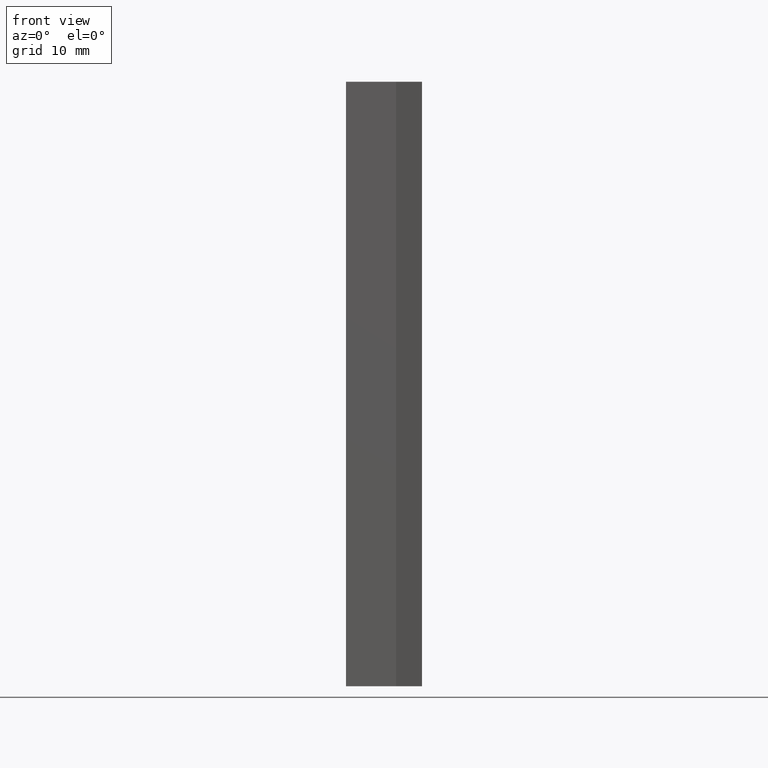
[diagram: clean part render]
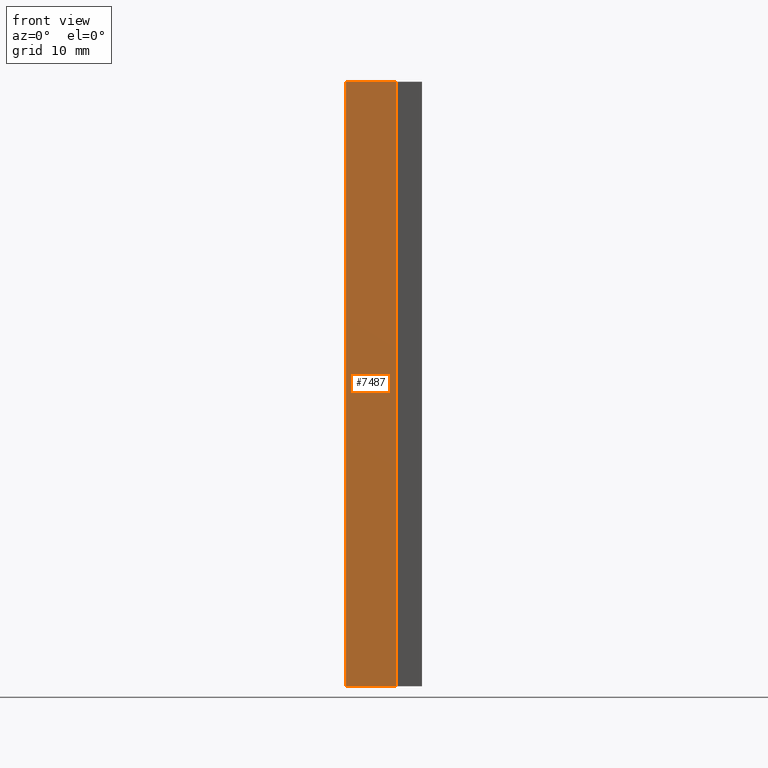
[diagram: same view with one face highlighted and labeled with its STEP entity id]
A machine part, front view. The second image highlights one B-rep face of the part: STEP entity #7487.
In plain terms, the highlighted planar face has unit normal (0, 1, -0).
Its self-contained STEP definition (entity closure, byte-faithful):
#605 = VECTOR ( 'NONE', #4762, 1000.000000000000000 ) ;
#721 = CARTESIAN_POINT ( 'NONE',  ( 1.500000000000005773, -25.00000000000000000, -37.35000000000000142 ) ) ;
#994 = LINE ( 'NONE', #9310, #3213 ) ;
#1508 = VERTEX_POINT ( 'NONE', #1540 ) ;
#1540 = CARTESIAN_POINT ( 'NONE',  ( 1.500000000000005773, -25.00000000000000000, 37.35000000000000142 ) ) ;
#2022 = DIRECTION ( 'NONE',  ( 0.000000000000000000, 1.000000000000000000, -0.000000000000000000 ) ) ;
#2044 = LINE ( 'NONE', #16484, #16152 ) ;
#2101 = VERTEX_POINT ( 'NONE', #13896 ) ;
#2422 = AXIS2_PLACEMENT_3D ( 'NONE', #9736, #2022, #14912 ) ;
#2598 = VERTEX_POINT ( 'NONE', #721 ) ;
#3213 = VECTOR ( 'NONE', #11830, 1000.000000000000000 ) ;
#3231 = CARTESIAN_POINT ( 'NONE',  ( 1.500000000000005773, -25.00000000000000000, 37.35000000000000142 ) ) ;
#3940 = EDGE_CURVE ( 'NONE', #4197, #2101, #8246, .T. ) ;
#4197 = VERTEX_POINT ( 'NONE', #9423 ) ;
#4441 = VECTOR ( 'NONE', #8410, 1000.000000000000000 ) ;
#4762 = DIRECTION ( 'NONE',  ( -0.000000000000000000, -0.000000000000000000, -1.000000000000000000 ) ) ;
#5687 = EDGE_CURVE ( 'NONE', #2101, #2598, #994, .T. ) ;
#7438 = LINE ( 'NONE', #3231, #4441 ) ;
#7487 = ADVANCED_FACE ( 'NONE', ( #10253 ), #8394, .F. ) ;
#7637 = DIRECTION ( 'NONE',  ( -0.000000000000000000, -0.000000000000000000, -1.000000000000000000 ) ) ;
#7970 = ORIENTED_EDGE ( 'NONE', *, *, #15464, .F. ) ;
#8246 = LINE ( 'NONE', #13642, #605 ) ;
#8394 = PLANE ( 'NONE',  #2422 ) ;
#8410 = DIRECTION ( 'NONE',  ( 1.000000000000000000, -0.000000000000000000, -0.000000000000000000 ) ) ;
#9310 = CARTESIAN_POINT ( 'NONE',  ( 1.500000000000005773, -25.00000000000000000, -37.35000000000000142 ) ) ;
#9423 = CARTESIAN_POINT ( 'NONE',  ( -4.699999999999993960, -25.00000000000000000, 37.35000000000000142 ) ) ;
#9736 = CARTESIAN_POINT ( 'NONE',  ( 1.500000000000005773, -25.00000000000000000, 37.35000000000000142 ) ) ;
#10253 = FACE_OUTER_BOUND ( 'NONE', #14938, .T. ) ;
#10312 = EDGE_CURVE ( 'NONE', #4197, #1508, #7438, .T. ) ;
#11830 = DIRECTION ( 'NONE',  ( 1.000000000000000000, -0.000000000000000000, -0.000000000000000000 ) ) ;
#12641 = ORIENTED_EDGE ( 'NONE', *, *, #10312, .F. ) ;
#13642 = CARTESIAN_POINT ( 'NONE',  ( -4.699999999999993960, -25.00000000000000000, 37.35000000000000142 ) ) ;
#13896 = CARTESIAN_POINT ( 'NONE',  ( -4.699999999999993960, -25.00000000000000000, -37.35000000000000142 ) ) ;
#14771 = ORIENTED_EDGE ( 'NONE', *, *, #5687, .T. ) ;
#14912 = DIRECTION ( 'NONE',  ( 0.000000000000000000, 0.000000000000000000, 1.000000000000000000 ) ) ;
#14938 = EDGE_LOOP ( 'NONE', ( #14771, #7970, #12641, #16162 ) ) ;
#15464 = EDGE_CURVE ( 'NONE', #1508, #2598, #2044, .T. ) ;
#16152 = VECTOR ( 'NONE', #7637, 1000.000000000000000 ) ;
#16162 = ORIENTED_EDGE ( 'NONE', *, *, #3940, .T. ) ;
#16484 = CARTESIAN_POINT ( 'NONE',  ( 1.500000000000005773, -25.00000000000000000, 37.35000000000000142 ) ) ;